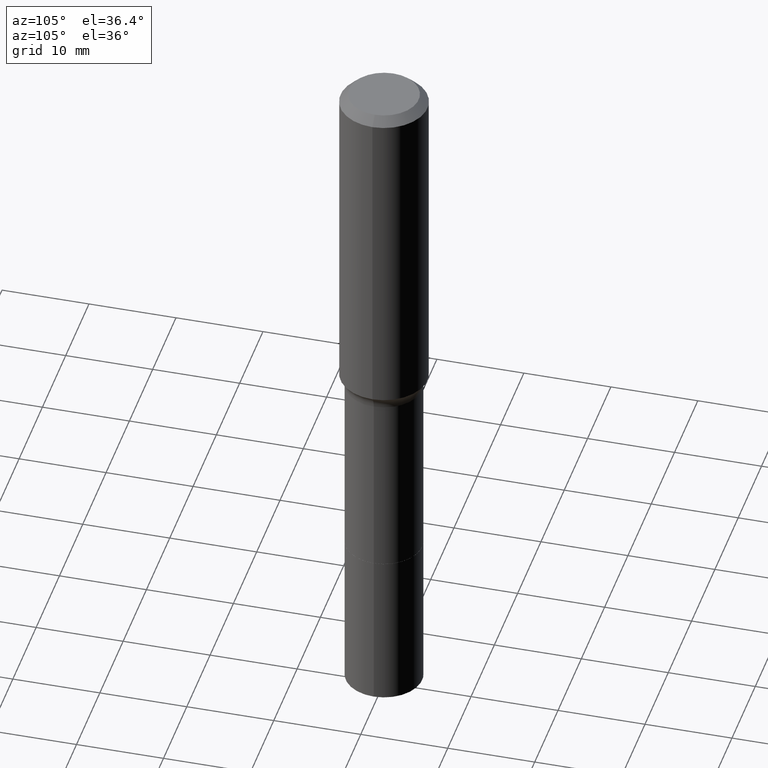
[diagram: clean part render]
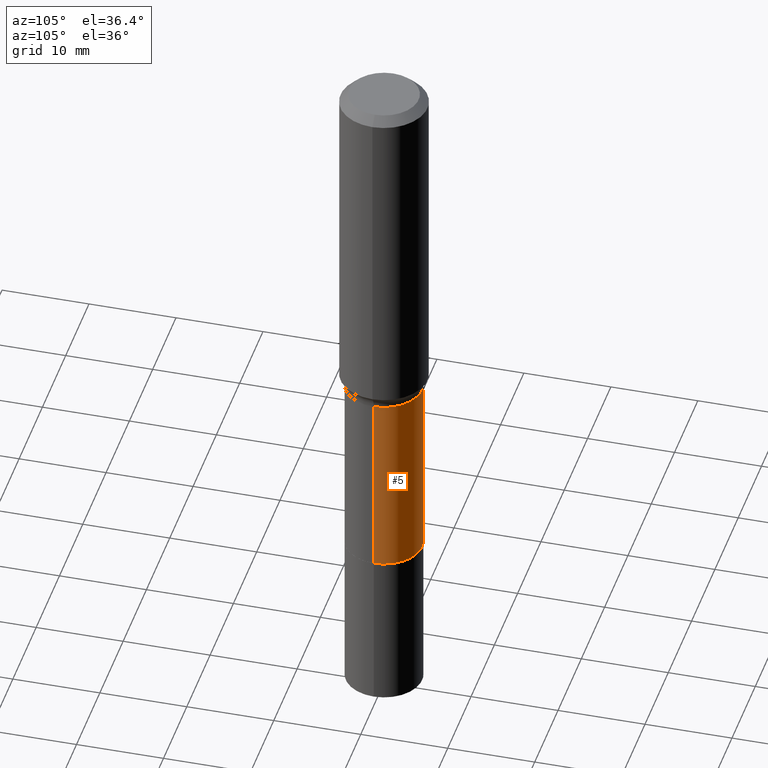
[diagram: same view with one face highlighted and labeled with its STEP entity id]
A machine part, auxiliary view. The second image highlights one B-rep face of the part: STEP entity #5.
In plain terms, the highlighted cylindrical surface (partial cylindrical patch) has radius 4.4005 mm, axis along (-0, 0, 1).
Its self-contained STEP definition (entity closure, byte-faithful):
#1 = VERTEX_POINT ( 'NONE', #286 ) ;
#5 = ADVANCED_FACE ( 'NONE', ( #411 ), #449, .T. ) ;
#37 = VERTEX_POINT ( 'NONE', #187 ) ;
#41 = CARTESIAN_POINT ( 'NONE',  ( 0.000000000000000000, 0.000000000000000000, 0.000000000000000000 ) ) ;
#47 = ORIENTED_EDGE ( 'NONE', *, *, #457, .T. ) ;
#48 = CARTESIAN_POINT ( 'NONE',  ( 5.930506401879575929E-29, -8.467191394828513453E-15, -2.425100000000000477 ) ) ;
#59 = DIRECTION ( 'NONE',  ( 1.000000000000000000, -6.982962677686267499E-15, 4.876176775795935793E-29 ) ) ;
#61 = DIRECTION ( 'NONE',  ( -2.445468806185136877E-29, 3.491481338843145188E-15, 1.000000000000000000 ) ) ;
#82 = VERTEX_POINT ( 'NONE', #306 ) ;
#84 = VECTOR ( 'NONE', #269, 39.37007874015748143 ) ;
#108 = CARTESIAN_POINT ( 'NONE',  ( -0.1732499999999999318, 1.231015289704373088E-15, -8.522055043866620619E-30 ) ) ;
#113 = ORIENTED_EDGE ( 'NONE', *, *, #170, .F. ) ;
#134 = LINE ( 'NONE', #509, #160 ) ;
#156 = CARTESIAN_POINT ( 'NONE',  ( 0.1732499999999999873, -9.676989678737658813E-15, -2.425100000000000477 ) ) ;
#160 = VECTOR ( 'NONE', #61, 39.37007874015748143 ) ;
#170 = EDGE_CURVE ( 'NONE', #37, #82, #198, .T. ) ;
#187 = CARTESIAN_POINT ( 'NONE',  ( 0.1732499999999998763, -6.707484800051562914E-15, -1.574600000000000222 ) ) ;
#198 = CIRCLE ( 'NONE', #431, 0.1732499999999998763 ) ;
#202 = ORIENTED_EDGE ( 'NONE', *, *, #360, .F. ) ;
#205 = EDGE_LOOP ( 'NONE', ( #394, #47, #113, #202 ) ) ;
#209 = DIRECTION ( 'NONE',  ( -2.445468806185136597E-29, 3.491481338843145583E-15, 1.000000000000000000 ) ) ;
#236 = DIRECTION ( 'NONE',  ( 1.000000000000000000, -6.982962677686265133E-15, 0.000000000000000000 ) ) ;
#262 = CIRCLE ( 'NONE', #372, 0.1732499999999999873 ) ;
#269 = DIRECTION ( 'NONE',  ( -2.445468806185136877E-29, 3.491481338843145188E-15, 1.000000000000000000 ) ) ;
#286 = CARTESIAN_POINT ( 'NONE',  ( -0.1732499999999999873, -5.751423665781092218E-15, -2.425100000000000477 ) ) ;
#288 = EDGE_CURVE ( 'NONE', #489, #1, #262, .T. ) ;
#306 = CARTESIAN_POINT ( 'NONE',  ( -0.1732499999999998763, -5.751423665781093007E-15, -1.574600000000000222 ) ) ;
#308 = AXIS2_PLACEMENT_3D ( 'NONE', #41, #209, #59 ) ;
#314 = LINE ( 'NONE', #108, #84 ) ;
#360 = EDGE_CURVE ( 'NONE', #489, #37, #134, .T. ) ;
#372 = AXIS2_PLACEMENT_3D ( 'NONE', #48, #379, #236 ) ;
#379 = DIRECTION ( 'NONE',  ( -2.445468806185136597E-29, 3.491481338843145583E-15, 1.000000000000000000 ) ) ;
#394 = ORIENTED_EDGE ( 'NONE', *, *, #288, .T. ) ;
#411 = FACE_OUTER_BOUND ( 'NONE', #205, .T. ) ;
#431 = AXIS2_PLACEMENT_3D ( 'NONE', #444, #480, #443 ) ;
#443 = DIRECTION ( 'NONE',  ( 1.000000000000000000, -6.982962677686269866E-15, 0.000000000000000000 ) ) ;
#444 = CARTESIAN_POINT ( 'NONE',  ( 3.850635182219116347E-29, -5.497686516142417553E-15, -1.574600000000000222 ) ) ;
#449 = CYLINDRICAL_SURFACE ( 'NONE', #308, 0.1732499999999999318 ) ;
#457 = EDGE_CURVE ( 'NONE', #1, #82, #314, .T. ) ;
#480 = DIRECTION ( 'NONE',  ( -2.445468806185136597E-29, 3.491481338843145583E-15, 1.000000000000000000 ) ) ;
#489 = VERTEX_POINT ( 'NONE', #156 ) ;
#509 = CARTESIAN_POINT ( 'NONE',  ( 0.1732499999999999318, -1.209798283909145361E-15, 8.447976264066455874E-30 ) ) ;